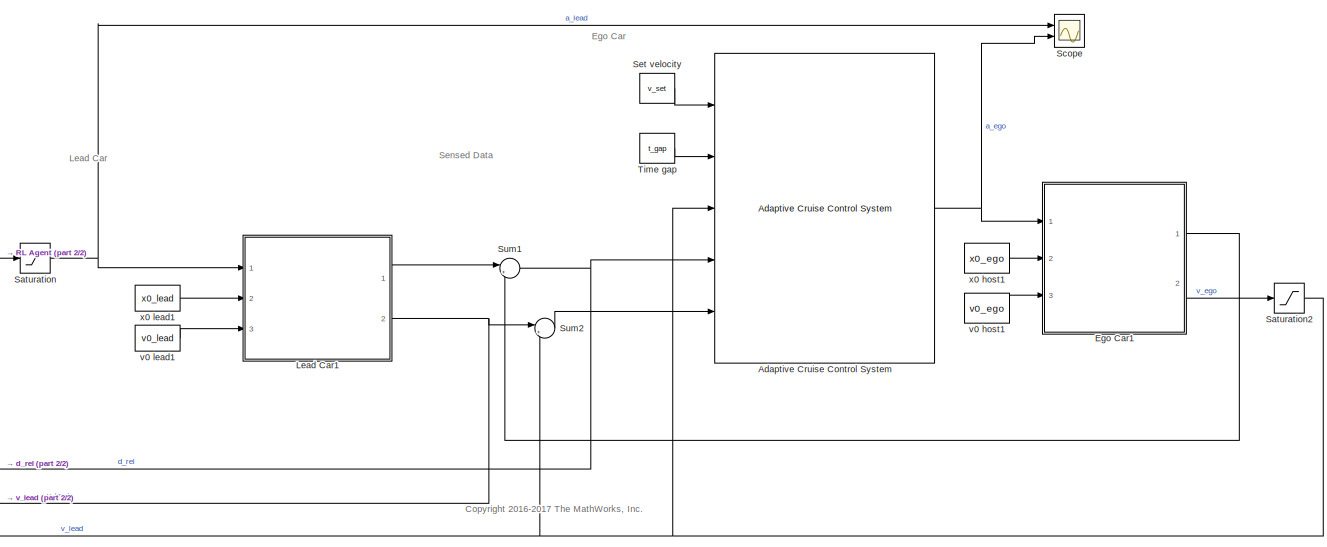
[diagram: root canvas - part 1/2, most of the canvas]
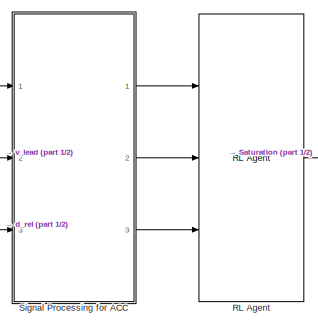
[diagram: root canvas - part 2/2, middle left region]
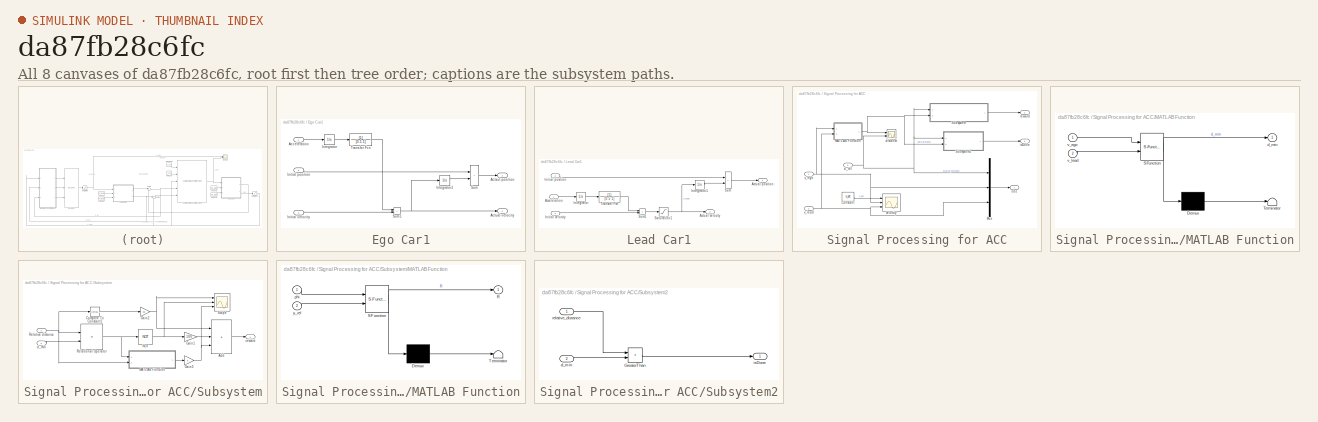
[diagram: thumbnail index - all 8 canvases of the model, root first then tree order]
MODEL slx_da87fb28c6fc
KIND model
CONFIG AbsTol = auto
CONFIG EnableMultiTasking = off
CONFIG FixedStep = auto
CONFIG MaxStep = auto
CONFIG MinStep = auto
CONFIG RelTol = 1e-3
CONFIG SampleTimeConstraint = Unconstrained
CONFIG SolverName = FixedStepAuto
CONFIG StartTime = 0.0
CONFIG StopTime = Tf
BLOCK [Reference] Adaptive Cruise Control System  REF=mpcadaslib/Adaptive Cruise Control System
  Ports = [5, 1]
  SourceBlock = mpcadaslib/Adaptive Cruise Control System
  SourceProductBaseCode = MP
  SourceType = Adaptive cruise control (ACC) system
BLOCK [SubSystem] Ego Car1
  Ports = [3, 2]
  RequestExecContextInheritance = off
BLOCK [Inport] Ego Car1/Acceleration
BLOCK [Outport] Ego Car1/Actaul position
  VectorParamsAs1DForOutWhenUnconnected = off
BLOCK [Outport] Ego Car1/Actual velocity
  Port = 2
  VectorParamsAs1DForOutWhenUnconnected = off
BLOCK [Inport] Ego Car1/Initial position
  Port = 2
BLOCK [Inport] Ego Car1/Initial velocity
  Port = 3
BLOCK [Integrator] Ego Car1/Integrator
  Ports = [1, 1]
BLOCK [Integrator] Ego Car1/Integrator1
  Ports = [1, 1]
BLOCK [Sum] Ego Car1/Sum
  IconShape = rectangular
  Ports = [2, 1]
BLOCK [Sum] Ego Car1/Sum1
  IconShape = rectangular
  Ports = [2, 1]
BLOCK [TransferFcn] Ego Car1/Transfer Fcn
  Denominator = [0.5 1]
BLOCK [SubSystem] Lead Car1
  Ports = [3, 2]
  RequestExecContextInheritance = off
BLOCK [Inport] Lead Car1/Acceleration
BLOCK [Outport] Lead Car1/Actual position
  VectorParamsAs1DForOutWhenUnconnected = off
BLOCK [Outport] Lead Car1/Actual velocity
  Port = 2
  VectorParamsAs1DForOutWhenUnconnected = off
BLOCK [Inport] Lead Car1/Initial position
  Port = 2
BLOCK [Inport] Lead Car1/Initial velocity
  Port = 3
BLOCK [Integrator] Lead Car1/Integrator
  Ports = [1, 1]
BLOCK [Integrator] Lead Car1/Integrator1
  Ports = [1, 1]
BLOCK [Saturate] Lead Car1/Saturation1
  LowerLimit = v_min_lead
  UpperLimit = v_max_lead
BLOCK [Sum] Lead Car1/Sum
  IconShape = rectangular
  Ports = [2, 1]
BLOCK [Sum] Lead Car1/Sum1
  IconShape = rectangular
  Ports = [2, 1]
BLOCK [TransferFcn] Lead Car1/Transfer Fcn
  Denominator = [0.5 1]
BLOCK [Reference] RL Agent  REF=rllib/RL Agent
  Ports = [3, 1]
  SourceBlock = rllib/RL Agent
  SourceProductName = Reinforcement Learning
  SourceType = RL Agent
BLOCK [Saturate] Saturation
  LowerLimit = amin_ego
  UpperLimit = amax_ego
BLOCK [Saturate] Saturation2
  LowerLimit = v_min_ego
  UpperLimit = v_max_ego
BLOCK [Scope] Scope
  Floating = off
  NumInputPorts = 2
  Ports = [2]
  ScopeSpecificationString = Simulink.scopes.TimeScopeBlockCfg('CurrentConfiguration', extmgr.ConfigurationSet(extmgr.Configuration('Core','General UI',true),extmgr.Configuration('Core','Source UI',true),extmgr.Configuration('Sources','WiredSimulink',true,'DataLoggingVariableName','ScopeData1'),extmgr.Configuration('Visuals','Time Domain',true,'SerializedDisplays',{struct('MinYLimReal','-3.75','MaxYLimReal','3.75','YLabelReal...<+1426ch>
BLOCK [Constant] Set velocity
  SampleTime = Ts
  Value = v_set
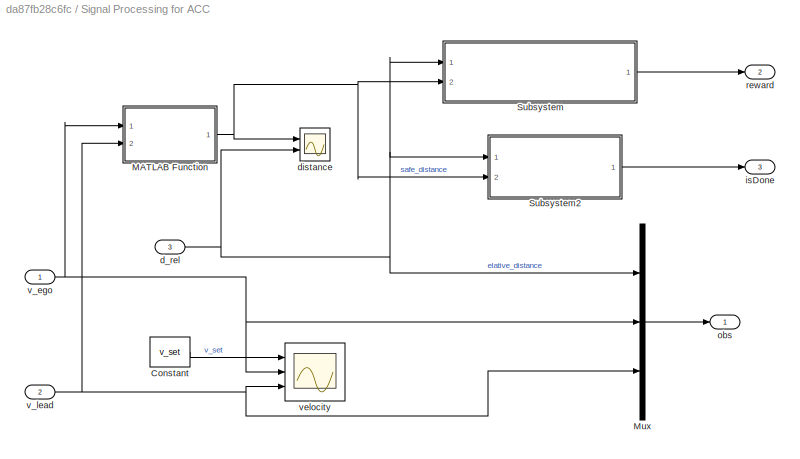
BLOCK [SubSystem] Signal Processing for ACC
  Ports = [3, 3]
  RequestExecContextInheritance = off
BLOCK [Constant] Signal Processing for ACC/Constant
  Value = v_set
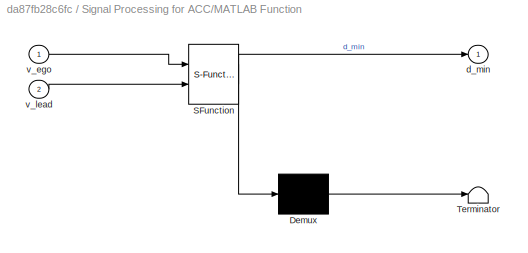
BLOCK [SubSystem] Signal Processing for ACC/MATLAB Function
  ErrorFcn = Stateflow.Translate.translate
  PermitHierarchicalResolution = ExplicitOnly
  Ports = [2, 1]
  RequestExecContextInheritance = off
  SFBlockType = MATLAB Function
  TreatAsAtomicUnit = on
BLOCK [Demux] Signal Processing for ACC/MATLAB Function/ Demux 
  Outputs = 1
  Ports = [1, 1]
BLOCK [S-Function] Signal Processing for ACC/MATLAB Function/ SFunction 
  EnableBusSupport = on
  FunctionName = sf_sfun
  PortCounts = [2 2]
  Ports = [2, 2]
  SFcnIsStateOwnerBlock = off
  SFunctionDeploymentMode = off
  Tag = Stateflow S-Function 2
BLOCK [Terminator] Signal Processing for ACC/MATLAB Function/ Terminator 
BLOCK [Outport] Signal Processing for ACC/MATLAB Function/d_min
BLOCK [Inport] Signal Processing for ACC/MATLAB Function/v_ego
BLOCK [Inport] Signal Processing for ACC/MATLAB Function/v_lead
  Port = 2
BLOCK [Mux] Signal Processing for ACC/Mux
  DisplayOption = bar
  Inputs = 3
  Ports = [3, 1]
BLOCK [SubSystem] Signal Processing for ACC/Subsystem
  Ports = [2, 1]
  RequestExecContextInheritance = off
BLOCK [Sum] Signal Processing for ACC/Subsystem/Add
  IconShape = rectangular
  Inputs = +++
  Ports = [3, 1]
BLOCK [Reference] Signal Processing for ACC/Subsystem/Compare To Constant1  REF=simulink/Logic and Bit
Operations/Compare
To Constant
  Ports = [1, 1]
  SourceBlock = simulink/Logic and Bit\nOperations/Compare\nTo Constant
  SourceProductBaseCode = SL
  SourceType = Compare To Constant
BLOCK [Gain] Signal Processing for ACC/Subsystem/Gain1
  Gain = 100
BLOCK [Gain] Signal Processing for ACC/Subsystem/Gain2
  Gain = -50
BLOCK [Gain] Signal Processing for ACC/Subsystem/Gain3
  Gain = 5
BLOCK [SubSystem] Signal Processing for ACC/Subsystem/MATLAB Function
  ErrorFcn = Stateflow.Translate.translate
  PermitHierarchicalResolution = ExplicitOnly
  Ports = [2, 1]
  RequestExecContextInheritance = off
  SFBlockType = MATLAB Function
  TreatAsAtomicUnit = on
BLOCK [Demux] Signal Processing for ACC/Subsystem/MATLAB Function/ Demux 
  Outputs = 1
  Ports = [1, 1]
BLOCK [S-Function] Signal Processing for ACC/Subsystem/MATLAB Function/ SFunction 
  EnableBusSupport = on
  FunctionName = sf_sfun
  PortCounts = [2 2]
  Ports = [2, 2]
  SFcnIsStateOwnerBlock = off
  SFunctionDeploymentMode = off
  Tag = Stateflow S-Function 1
BLOCK [Terminator] Signal Processing for ACC/Subsystem/MATLAB Function/ Terminator 
BLOCK [Outport] Signal Processing for ACC/Subsystem/MATLAB Function/R
  VectorParamsAs1DForOutWhenUnconnected = off
BLOCK [Inport] Signal Processing for ACC/Subsystem/MATLAB Function/phi
BLOCK [Inport] Signal Processing for ACC/Subsystem/MATLAB Function/y_rel
  Port = 2
BLOCK [Logic] Signal Processing for ACC/Subsystem/NOT
  AllPortsSameDT = off
  IconShape = distinctive
  Operator = NOT
  OutDataTypeStr = boolean
  Ports = [1, 1]
BLOCK [RelationalOperator] Signal Processing for ACC/Subsystem/Relational Operator
  InputSameDT = off
  Operator = >
  OutDataTypeStr = boolean
  Ports = [2, 1]
  RndMeth = Simplest
BLOCK [Inport] Signal Processing for ACC/Subsystem/Relative distance
BLOCK [Scope] Signal Processing for ACC/Subsystem/Scope
  Floating = off
  NumInputPorts = 3
  Ports = [3]
  ScopeSpecificationString = Simulink.scopes.TimeScopeBlockCfg('CurrentConfiguration', extmgr.ConfigurationSet(extmgr.Configuration('Core','General UI',true),extmgr.Configuration('Core','Source UI',true),extmgr.Configuration('Sources','WiredSimulink',true,'DataLoggingVariableName','ScopeData2'),extmgr.Configuration('Visuals','Time Domain',true,'InputProcessing','FrameProcessing','SerializedDisplays',{struct('MinYLimReal','-56...<+1524ch>
BLOCK [Inport] Signal Processing for ACC/Subsystem/d_min
  Port = 2
BLOCK [Outport] Signal Processing for ACC/Subsystem/reward
BLOCK [SubSystem] Signal Processing for ACC/Subsystem2
  Ports = [2, 1]
  RequestExecContextInheritance = off
BLOCK [RelationalOperator] Signal Processing for ACC/Subsystem2/GreaterThan
  InputSameDT = off
  Operator = <
  OutDataTypeStr = boolean
  Ports = [2, 1]
  RndMeth = Simplest
BLOCK [Inport] Signal Processing for ACC/Subsystem2/d_min
  Port = 2
BLOCK [Outport] Signal Processing for ACC/Subsystem2/isDone
  VectorParamsAs1DForOutWhenUnconnected = off
BLOCK [Inport] Signal Processing for ACC/Subsystem2/relative_distance
BLOCK [Inport] Signal Processing for ACC/d_rel
  Port = 3
BLOCK [Scope] Signal Processing for ACC/distance
  Floating = off
  NumInputPorts = 2
  Ports = [2]
  ScopeSpecificationString = Simulink.scopes.TimeScopeBlockCfg('CurrentConfiguration', extmgr.ConfigurationSet(extmgr.Configuration('Core','General UI',true),extmgr.Configuration('Core','Source UI',true),extmgr.Configuration('Sources','WiredSimulink',true,'DataLoggingVariableName','ScopeData4'),extmgr.Configuration('Visuals','Time Domain',true,'SerializedDisplays',{struct('MinYLimReal','-14.53023','MaxYLimReal','130.77207','Y...<+1473ch>
BLOCK [Outport] Signal Processing for ACC/isDone
  Port = 3
  VectorParamsAs1DForOutWhenUnconnected = off
BLOCK [Outport] Signal Processing for ACC/obs
  VectorParamsAs1DForOutWhenUnconnected = off
BLOCK [Outport] Signal Processing for ACC/reward
  Port = 2
  VectorParamsAs1DForOutWhenUnconnected = off
BLOCK [Inport] Signal Processing for ACC/v_ego
BLOCK [Inport] Signal Processing for ACC/v_lead
  Port = 2
BLOCK [Scope] Signal Processing for ACC/velocity
  Floating = off
  NumInputPorts = 3
  Ports = [3]
  ScopeSpecificationString = Simulink.scopes.TimeScopeBlockCfg('CurrentConfiguration', extmgr.ConfigurationSet(extmgr.Configuration('Core','General UI',true),extmgr.Configuration('Core','Source UI',true),extmgr.Configuration('Sources','WiredSimulink',true,'DataLoggingVariableName','ScopeData3'),extmgr.Configuration('Visuals','Time Domain',true,'SerializedDisplays',{struct('MinYLimReal','13.125','MaxYLimReal','31.875','YLabelR...<+1442ch>
BLOCK [Sum] Sum1
  Inputs = |+-
  Ports = [2, 1]
BLOCK [Sum] Sum2
  Inputs = |+-
  Ports = [2, 1]
BLOCK [Constant] Time gap
  SampleTime = Ts
  Value = t_gap
BLOCK [Constant] v0 host1
  SampleTime = Ts
  Value = v0_ego
BLOCK [Constant] v0 lead1
  SampleTime = Ts
  Value = v0_lead
BLOCK [Constant] x0 host1
  SampleTime = Ts
  Value = x0_ego
BLOCK [Constant] x0 lead1
  SampleTime = Ts
  Value = x0_lead
ANNOTATION (root): <copyright redacted>
ANNOTATION (root): Ego Car
ANNOTATION (root): Lead Car
ANNOTATION (root): Sensed Data
NET Adaptive Cruise Control System:1 -> Ego Car1:1, Scope:2
LINE Ego Car1/Acceleration:1 -> Ego Car1/Integrator:1
LINE Ego Car1/Initial position:1 -> Ego Car1/Sum:1
LINE Ego Car1/Initial velocity:1 -> Ego Car1/Sum1:2
LINE Ego Car1/Integrator1:1 -> Ego Car1/Sum:2
LINE Ego Car1/Integrator:1 -> Ego Car1/Transfer Fcn:1
NET Ego Car1/Sum1:1 -> Ego Car1/Actual velocity:1, Ego Car1/Integrator1:1
LINE Ego Car1/Sum:1 -> Ego Car1/Actaul position:1
LINE Ego Car1/Transfer Fcn:1 -> Ego Car1/Sum1:1
LINE Ego Car1:1 -> Sum1:2
LINE Ego Car1:2 -> Saturation2:1
LINE Lead Car1/Acceleration:1 -> Lead Car1/Integrator:1
LINE Lead Car1/Initial position:1 -> Lead Car1/Sum:1
LINE Lead Car1/Initial velocity:1 -> Lead Car1/Sum1:2
LINE Lead Car1/Integrator1:1 -> Lead Car1/Sum:2
LINE Lead Car1/Integrator:1 -> Lead Car1/Transfer Fcn:1
NET Lead Car1/Saturation1:1 -> Lead Car1/Actual velocity:1, Lead Car1/Integrator1:1
LINE Lead Car1/Sum1:1 -> Lead Car1/Saturation1:1
LINE Lead Car1/Sum:1 -> Lead Car1/Actual position:1
LINE Lead Car1/Transfer Fcn:1 -> Lead Car1/Sum1:1
LINE Lead Car1:1 -> Sum1:1
NET Lead Car1:2 -> Signal Processing for ACC:2, Sum2:1
LINE RL Agent:1 -> Saturation:1
NET Saturation2:1 -> Adaptive Cruise Control System:3, Signal Processing for ACC:1, Sum2:2
NET Saturation:1 -> Lead Car1:1, Scope:1
LINE Set velocity:1 -> Adaptive Cruise Control System:1
LINE Signal Processing for ACC/Constant:1 -> Signal Processing for ACC/velocity:1
NET Signal Processing for ACC/MATLAB Function:1 -> Signal Processing for ACC/Subsystem2:2, Signal Processing for ACC/Subsystem:2, Signal Processing for ACC/distance:1
LINE Signal Processing for ACC/Mux:1 -> Signal Processing for ACC/obs:1
LINE Signal Processing for ACC/Subsystem/Add:1 -> Signal Processing for ACC/Subsystem/reward:1
LINE Signal Processing for ACC/Subsystem/Compare To Constant1:1 -> Signal Processing for ACC/Subsystem/Gain2:1
LINE Signal Processing for ACC/Subsystem/Gain1:1 -> Signal Processing for ACC/Subsystem/Add:2
NET Signal Processing for ACC/Subsystem/Gain2:1 -> Signal Processing for ACC/Subsystem/Add:1, Signal Processing for ACC/Subsystem/Scope:1
NET Signal Processing for ACC/Subsystem/Gain3:1 -> Signal Processing for ACC/Subsystem/Add:3, Signal Processing for ACC/Subsystem/Scope:3
LINE Signal Processing for ACC/Subsystem/MATLAB Function:1 -> Signal Processing for ACC/Subsystem/Gain3:1
NET Signal Processing for ACC/Subsystem/NOT:1 -> Signal Processing for ACC/Subsystem/Gain1:1, Signal Processing for ACC/Subsystem/Scope:2
NET Signal Processing for ACC/Subsystem/Relational Operator:1 -> Signal Processing for ACC/Subsystem/MATLAB Function:1, Signal Processing for ACC/Subsystem/NOT:1
NET Signal Processing for ACC/Subsystem/Relative distance:1 -> Signal Processing for ACC/Subsystem/Compare To Constant1:1, Signal Processing for ACC/Subsystem/MATLAB Function:2, Signal Processing for ACC/Subsystem/Relational Operator:1
LINE Signal Processing for ACC/Subsystem/d_min:1 -> Signal Processing for ACC/Subsystem/Relational Operator:2
LINE Signal Processing for ACC/Subsystem2/GreaterThan:1 -> Signal Processing for ACC/Subsystem2/isDone:1
LINE Signal Processing for ACC/Subsystem2/d_min:1 -> Signal Processing for ACC/Subsystem2/GreaterThan:2
LINE Signal Processing for ACC/Subsystem2/relative_distance:1 -> Signal Processing for ACC/Subsystem2/GreaterThan:1
LINE Signal Processing for ACC/Subsystem2:1 -> Signal Processing for ACC/isDone:1
LINE Signal Processing for ACC/Subsystem:1 -> Signal Processing for ACC/reward:1
NET Signal Processing for ACC/d_rel:1 -> Signal Processing for ACC/Mux:1, Signal Processing for ACC/Subsystem2:1, Signal Processing for ACC/Subsystem:1, Signal Processing for ACC/distance:2
NET Signal Processing for ACC/v_ego:1 -> Signal Processing for ACC/MATLAB Function:1, Signal Processing for ACC/Mux:2, Signal Processing for ACC/velocity:2
NET Signal Processing for ACC/v_lead:1 -> Signal Processing for ACC/MATLAB Function:2, Signal Processing for ACC/Mux:3, Signal Processing for ACC/velocity:3
LINE Signal Processing for ACC:1 -> RL Agent:1
LINE Signal Processing for ACC:2 -> RL Agent:2
LINE Signal Processing for ACC:3 -> RL Agent:3
NET Sum1:1 -> Adaptive Cruise Control System:4, Signal Processing for ACC:3
LINE Sum2:1 -> Adaptive Cruise Control System:5
LINE Time gap:1 -> Adaptive Cruise Control System:2
LINE v0 host1:1 -> Ego Car1:3
LINE v0 lead1:1 -> Lead Car1:3
LINE x0 host1:1 -> Ego Car1:2
LINE x0 lead1:1 -> Lead Car1:2
note: NET lines group one-source signal fan-out (src -> all destinations, sorted); 1:1 wires keep LINE
CHART Signal Processing for ACC/MATLAB Function states=1 transitions=1
  STATE_LABEL 'eML_blk_kernel()'
  STATE_LABEL 'SCRIPT:\nfunction d_min=dmin(v_ego,v_lead)\n%To compute the minimum distance\n% Response time\ntr=0.1;\n% Max acceleration of ego car \na_max_acc=3;\n% Max acceleration of lead car to full stop\na_max_brake=3;\n% Min acceleration of lead car to full stop\na_min_brake=2.5;\ntemp=v_ego*tr+a_max_acc*tr^2/2 + (v_ego+a_max_acc*tr)^2/(2*a_min_brake) -v_lead^2/(2*a_max_brake);\nif temp <0\n   d_min=0;\nelse\n   d_min=t...<+14ch>'
CHART Signal Processing for ACC/Subsystem/MATLAB Function states=1 transitions=1
  STATE_LABEL 'eML_blk_kernel()'
  STATE_LABEL 'SCRIPT:\nfunction R = reward_function(phi, y_rel)\n    k = 0.001;\n    R = exp(-k*phi*y_rel)-1;\nend\n'
CHART  states=0 transitions=0
CHART  states=0 transitions=0
